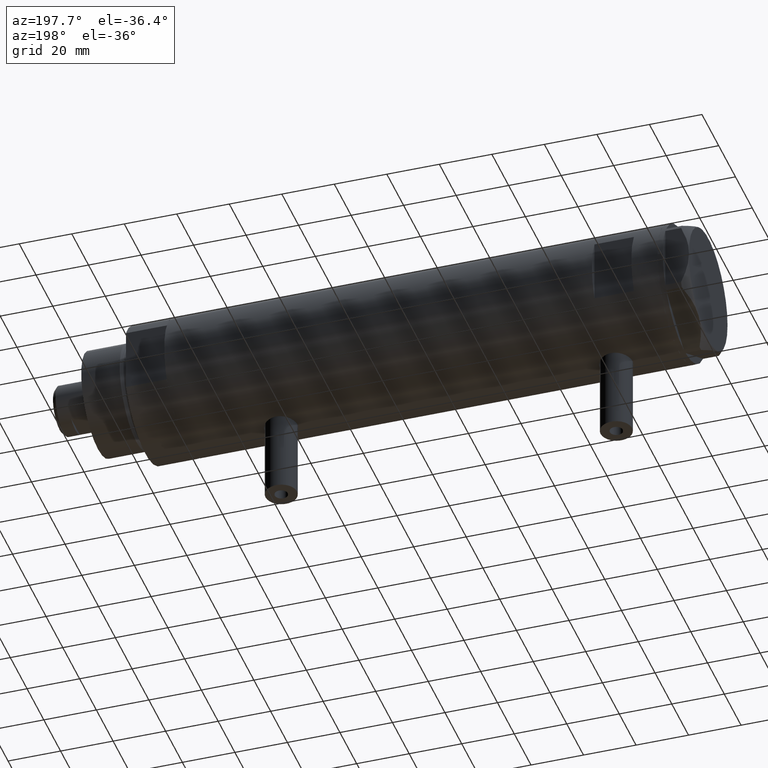
[diagram: clean part render]
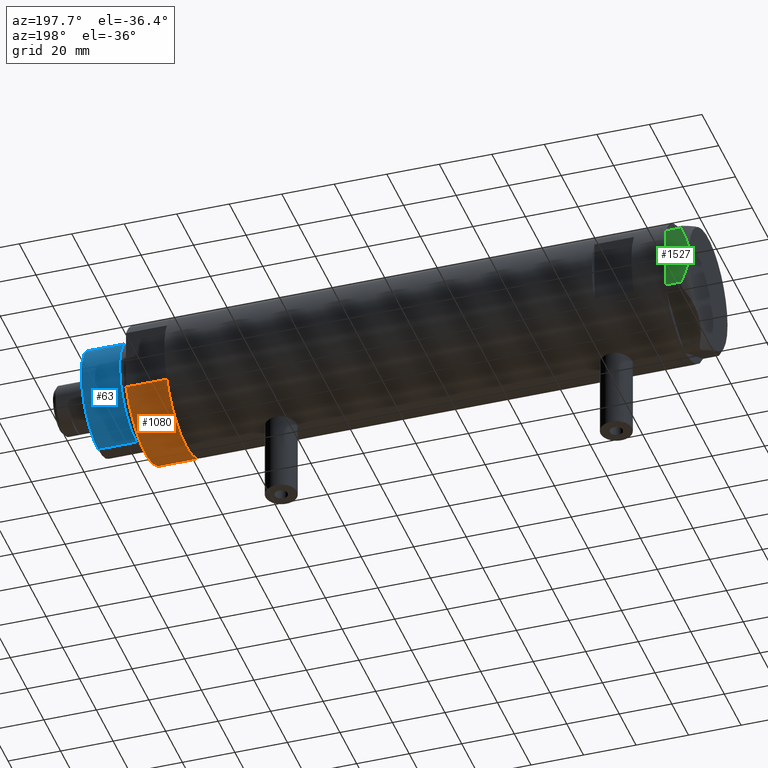
[diagram: same view with three faces highlighted in distinct colors, each labeled with its STEP entity id]
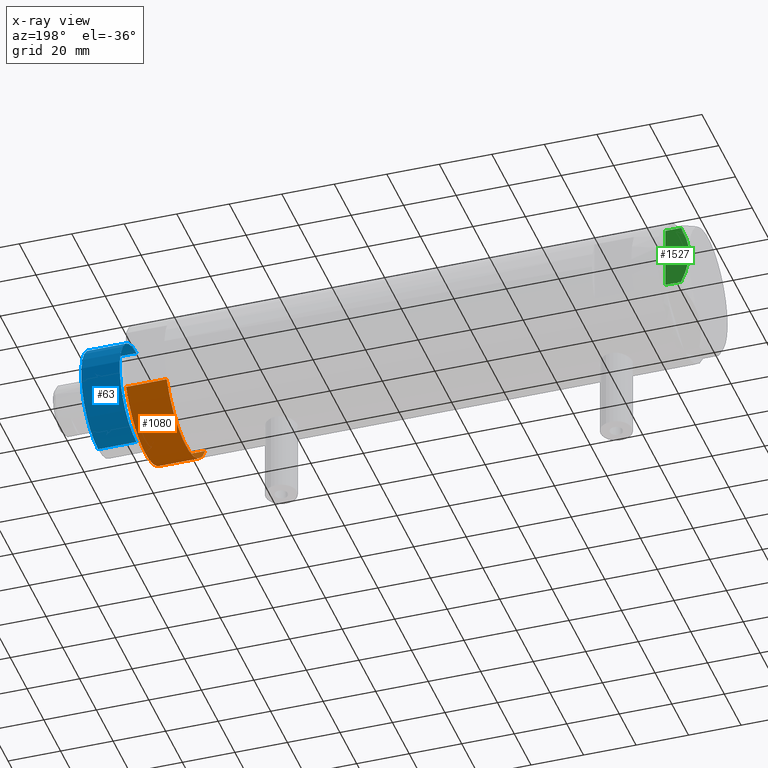
[diagram: x-ray of the same camera — body ghosted, the three highlighted faces saturated]
A machine part, auxiliary view with three faces highlighted in distinct colors.
The next image is the same camera in x-ray (body ghosted, the three faces saturated) — at least one of them is partly hidden behind the body in this view.
Their STEP definitions:

[orange] entity #1080 — the highlighted cylindrical surface (partial cylindrical patch) has radius 26 mm, axis along (-1, -0, 0).
#337 = EDGE_CURVE ( 'NONE', #416, #1329, #1840, .T. ) ;
#355 = FACE_OUTER_BOUND ( 'NONE', #2528, .T. ) ;
#416 = VERTEX_POINT ( 'NONE', #1389 ) ;
#421 = VECTOR ( 'NONE', #2691, 1000.000000000000000 ) ;
#427 = CIRCLE ( 'NONE', #681, 26.00000000000000355 ) ;
#646 = DIRECTION ( 'NONE',  ( -0.000000000000000000, -0.000000000000000000, -1.000000000000000000 ) ) ;
#681 = AXIS2_PLACEMENT_3D ( 'NONE', #2593, #1401, #4996 ) ;
#961 = VERTEX_POINT ( 'NONE', #2281 ) ;
#1024 = CARTESIAN_POINT ( 'NONE',  ( 12.12435565298215323, -22.99999999999999645, 0.000000000000000000 ) ) ;
#1080 = ADVANCED_FACE ( 'NONE', ( #355 ), #1923, .T. ) ;
#1147 = EDGE_CURVE ( 'NONE', #4863, #1329, #5066, .T. ) ;
#1197 = VECTOR ( 'NONE', #1398, 1000.000000000000000 ) ;
#1329 = VERTEX_POINT ( 'NONE', #2768 ) ;
#1389 = CARTESIAN_POINT ( 'NONE',  ( 12.12435565298215323, -22.99999999999999645, 15.50000000000000000 ) ) ;
#1398 = DIRECTION ( 'NONE',  ( -0.000000000000000000, -0.000000000000000000, 1.000000000000000000 ) ) ;
#1401 = DIRECTION ( 'NONE',  ( 0.000000000000000000, 0.000000000000000000, 1.000000000000000000 ) ) ;
#1589 = DIRECTION ( 'NONE',  ( 1.000000000000000000, 0.000000000000000000, 0.000000000000000000 ) ) ;
#1765 = AXIS2_PLACEMENT_3D ( 'NONE', #4296, #646, #4323 ) ;
#1839 = ORIENTED_EDGE ( 'NONE', *, *, #1147, .T. ) ;
#1840 = CIRCLE ( 'NONE', #3515, 26.00000000000000355 ) ;
#1923 = CYLINDRICAL_SURFACE ( 'NONE', #1765, 26.00000000000000355 ) ;
#2003 = EDGE_CURVE ( 'NONE', #961, #4863, #427, .T. ) ;
#2281 = CARTESIAN_POINT ( 'NONE',  ( 12.12435565298215323, -22.99999999999999645, 0.000000000000000000 ) ) ;
#2371 = DIRECTION ( 'NONE',  ( 0.000000000000000000, 0.000000000000000000, 1.000000000000000000 ) ) ;
#2476 = CARTESIAN_POINT ( 'NONE',  ( 0.000000000000000000, 0.000000000000000000, 15.50000000000000000 ) ) ;
#2528 = EDGE_LOOP ( 'NONE', ( #3009, #3280, #3367, #1839 ) ) ;
#2593 = CARTESIAN_POINT ( 'NONE',  ( 0.000000000000000000, 0.000000000000000000, 0.000000000000000000 ) ) ;
#2691 = DIRECTION ( 'NONE',  ( -0.000000000000000000, -0.000000000000000000, 1.000000000000000000 ) ) ;
#2749 = EDGE_CURVE ( 'NONE', #961, #416, #4143, .T. ) ;
#2768 = CARTESIAN_POINT ( 'NONE',  ( 12.12435565298214790, 23.00000000000000355, 15.50000000000000000 ) ) ;
#3009 = ORIENTED_EDGE ( 'NONE', *, *, #337, .F. ) ;
#3280 = ORIENTED_EDGE ( 'NONE', *, *, #2749, .F. ) ;
#3367 = ORIENTED_EDGE ( 'NONE', *, *, #2003, .T. ) ;
#3515 = AXIS2_PLACEMENT_3D ( 'NONE', #2476, #2371, #1589 ) ;
#4143 = LINE ( 'NONE', #1024, #1197 ) ;
#4268 = CARTESIAN_POINT ( 'NONE',  ( 12.12435565298215323, 23.00000000000000355, 0.000000000000000000 ) ) ;
#4296 = CARTESIAN_POINT ( 'NONE',  ( 0.000000000000000000, 0.000000000000000000, 15.50000000000000000 ) ) ;
#4323 = DIRECTION ( 'NONE',  ( -1.000000000000000000, 0.000000000000000000, 0.000000000000000000 ) ) ;
#4574 = CARTESIAN_POINT ( 'NONE',  ( 12.12435565298214080, 23.00000000000000355, 0.000000000000000000 ) ) ;
#4863 = VERTEX_POINT ( 'NONE', #4574 ) ;
#4996 = DIRECTION ( 'NONE',  ( 1.000000000000000000, 0.000000000000000000, 0.000000000000000000 ) ) ;
#5066 = LINE ( 'NONE', #4268, #421 ) ;

[blue] entity #63 — the highlighted cylindrical surface (partial cylindrical patch) has radius 20 mm, axis along (-1, -0, 0).
#63 = ADVANCED_FACE ( 'NONE', ( #3942 ), #722, .T. ) ;
#110 = DIRECTION ( 'NONE',  ( -0.000000000000000000, -0.000000000000000000, -1.000000000000000000 ) ) ;
#324 = DIRECTION ( 'NONE',  ( -1.000000000000000000, 0.000000000000000000, 0.000000000000000000 ) ) ;
#492 = DIRECTION ( 'NONE',  ( 1.000000000000000000, 0.000000000000000000, 0.000000000000000000 ) ) ;
#644 = VERTEX_POINT ( 'NONE', #1609 ) ;
#659 = LINE ( 'NONE', #3572, #1461 ) ;
#672 = AXIS2_PLACEMENT_3D ( 'NONE', #4444, #3969, #2439 ) ;
#722 = CYLINDRICAL_SURFACE ( 'NONE', #3947, 19.99999999999999645 ) ;
#754 = EDGE_CURVE ( 'NONE', #3873, #4759, #2939, .T. ) ;
#822 = EDGE_CURVE ( 'NONE', #1915, #4759, #4553, .T. ) ;
#854 = CIRCLE ( 'NONE', #5133, 19.99999999999999645 ) ;
#1461 = VECTOR ( 'NONE', #2330, 1000.000000000000000 ) ;
#1560 = ORIENTED_EDGE ( 'NONE', *, *, #754, .T. ) ;
#1609 = CARTESIAN_POINT ( 'NONE',  ( 19.99999999999999645, 2.449293598294706119E-15, 33.50000000000000000 ) ) ;
#1838 = EDGE_CURVE ( 'NONE', #644, #1915, #854, .T. ) ;
#1915 = VERTEX_POINT ( 'NONE', #2729 ) ;
#2020 = DIRECTION ( 'NONE',  ( 0.000000000000000000, 0.000000000000000000, 1.000000000000000000 ) ) ;
#2246 = CARTESIAN_POINT ( 'NONE',  ( 19.99999999999999645, 2.449293598294706119E-15, 18.87384048104053846 ) ) ;
#2330 = DIRECTION ( 'NONE',  ( -0.000000000000000000, -0.000000000000000000, -1.000000000000000000 ) ) ;
#2439 = DIRECTION ( 'NONE',  ( 1.000000000000000000, 0.000000000000000000, 0.000000000000000000 ) ) ;
#2592 = CARTESIAN_POINT ( 'NONE',  ( -19.99999999999999645, 0.000000000000000000, 18.87384048104053846 ) ) ;
#2598 = ORIENTED_EDGE ( 'NONE', *, *, #4160, .T. ) ;
#2729 = CARTESIAN_POINT ( 'NONE',  ( -19.99999999999999645, 0.000000000000000000, 33.50000000000000000 ) ) ;
#2939 = CIRCLE ( 'NONE', #672, 19.99999999999999645 ) ;
#3021 = VECTOR ( 'NONE', #110, 1000.000000000000000 ) ;
#3132 = DIRECTION ( 'NONE',  ( -0.000000000000000000, -0.000000000000000000, -1.000000000000000000 ) ) ;
#3572 = CARTESIAN_POINT ( 'NONE',  ( 19.99999999999999645, 2.449293598294706119E-15, 33.50000000000000000 ) ) ;
#3873 = VERTEX_POINT ( 'NONE', #2246 ) ;
#3942 = FACE_OUTER_BOUND ( 'NONE', #4051, .T. ) ;
#3947 = AXIS2_PLACEMENT_3D ( 'NONE', #3972, #3132, #324 ) ;
#3969 = DIRECTION ( 'NONE',  ( -0.000000000000000000, -0.000000000000000000, 1.000000000000000000 ) ) ;
#3972 = CARTESIAN_POINT ( 'NONE',  ( 0.000000000000000000, 0.000000000000000000, 33.50000000000000000 ) ) ;
#4051 = EDGE_LOOP ( 'NONE', ( #4140, #2598, #1560, #4758 ) ) ;
#4096 = CARTESIAN_POINT ( 'NONE',  ( -19.99999999999999645, 0.000000000000000000, 33.50000000000000000 ) ) ;
#4140 = ORIENTED_EDGE ( 'NONE', *, *, #1838, .F. ) ;
#4160 = EDGE_CURVE ( 'NONE', #644, #3873, #659, .T. ) ;
#4444 = CARTESIAN_POINT ( 'NONE',  ( 0.000000000000000000, 0.000000000000000000, 18.87384048104053846 ) ) ;
#4553 = LINE ( 'NONE', #4096, #3021 ) ;
#4758 = ORIENTED_EDGE ( 'NONE', *, *, #822, .F. ) ;
#4759 = VERTEX_POINT ( 'NONE', #2592 ) ;
#4840 = CARTESIAN_POINT ( 'NONE',  ( 0.000000000000000000, 0.000000000000000000, 33.50000000000000000 ) ) ;
#5133 = AXIS2_PLACEMENT_3D ( 'NONE', #4840, #2020, #492 ) ;

[green] entity #1527 — the highlighted planar face has unit normal (0, -1, 0).
#12 = CARTESIAN_POINT ( 'NONE',  ( 22.99999999999982236, 12.15905619136163729, 0.000000000000000000 ) ) ;
#19 = VECTOR ( 'NONE', #1291, 1000.000000000000000 ) ;
#58 = CARTESIAN_POINT ( 'NONE',  ( 22.99999999999997513, -2.122900714017905699, 9.000000000000095923 ) ) ;
#137 = CARTESIAN_POINT ( 'NONE',  ( 23.00000000000008527, -13.27905619136115867, 0.000000000000000000 ) ) ;
#239 = EDGE_CURVE ( 'NONE', #5113, #496, #3682, .T. ) ;
#271 = CARTESIAN_POINT ( 'NONE',  ( 23.00000000000007461, -12.12435565298200224, 0.000000000000000000 ) ) ;
#275 = VECTOR ( 'NONE', #903, 1000.000000000000000 ) ;
#300 = CARTESIAN_POINT ( 'NONE',  ( 22.99999999999987921, 7.253003311474552461, 7.903276810347635184 ) ) ;
#326 = CARTESIAN_POINT ( 'NONE',  ( 22.99999999999985079, 9.734726261263462632, 7.028924700095659617 ) ) ;
#383 = EDGE_CURVE ( 'NONE', #1313, #3920, #4562, .T. ) ;
#429 = CARTESIAN_POINT ( 'NONE',  ( 23.00000000000008527, -13.27905619136115867, 0.000000000000000000 ) ) ;
#440 = LINE ( 'NONE', #1210, #19 ) ;
#496 = VERTEX_POINT ( 'NONE', #271 ) ;
#507 = AXIS2_PLACEMENT_3D ( 'NONE', #4873, #4561, #1770 ) ;
#660 = ORIENTED_EDGE ( 'NONE', *, *, #3539, .T. ) ;
#727 = EDGE_CURVE ( 'NONE', #1857, #1393, #4347, .T. ) ;
#823 = CARTESIAN_POINT ( 'NONE',  ( 23.00000000000006395, -11.20825071633898240, 6.428173306378455187 ) ) ;
#852 = EDGE_CURVE ( 'NONE', #5082, #1313, #981, .T. ) ;
#861 = CARTESIAN_POINT ( 'NONE',  ( 22.99999999999982592, 12.12435565298247653, 0.000000000000000000 ) ) ;
#903 = DIRECTION ( 'NONE',  ( -1.032024811306395780E-14, 1.000000000000000000, 0.000000000000000000 ) ) ;
#917 = CARTESIAN_POINT ( 'NONE',  ( 23.00000000000007461, -12.15905619136115412, 5.983800287807623519 ) ) ;
#922 = VECTOR ( 'NONE', #3789, 1000.000000000000000 ) ;
#943 = CARTESIAN_POINT ( 'NONE',  ( 22.99999999999982236, 12.15905619136164262, 5.983800287807618190 ) ) ;
#981 = LINE ( 'NONE', #137, #5040 ) ;
#1143 = ORIENTED_EDGE ( 'NONE', *, *, #239, .T. ) ;
#1152 = CARTESIAN_POINT ( 'NONE',  ( 22.99999999999995026, 2.373657066004705010E-13, 9.000000000000000000 ) ) ;
#1210 = CARTESIAN_POINT ( 'NONE',  ( 23.00000000000007461, -12.15905619136115590, 9.000000000000000000 ) ) ;
#1224 = CARTESIAN_POINT ( 'NONE',  ( 23.00000000000005684, -10.23890159976104641, 6.840812428290920622 ) ) ;
#1230 = EDGE_CURVE ( 'NONE', #1393, #3920, #3693, .T. ) ;
#1291 = DIRECTION ( 'NONE',  ( 0.000000000000000000, 0.000000000000000000, -1.000000000000000000 ) ) ;
#1313 = VERTEX_POINT ( 'NONE', #12 ) ;
#1393 = VERTEX_POINT ( 'NONE', #1152 ) ;
#1465 = CARTESIAN_POINT ( 'NONE',  ( 22.99999999999995026, 2.373657066004705010E-13, 9.000000000000000000 ) ) ;
#1488 = CARTESIAN_POINT ( 'NONE',  ( 22.99999999999982236, 12.15905619136164262, 5.983800287807618190 ) ) ;
#1527 = ADVANCED_FACE ( 'NONE', ( #4530 ), #3340, .F. ) ;
#1583 = CARTESIAN_POINT ( 'NONE',  ( 23.00000000000002132, -6.734330413511252722, 8.039389741252669808 ) ) ;
#1617 = DIRECTION ( 'NONE',  ( -1.032024811306395780E-14, 1.000000000000000000, 0.000000000000000000 ) ) ;
#1661 = ORIENTED_EDGE ( 'NONE', *, *, #383, .T. ) ;
#1770 = DIRECTION ( 'NONE',  ( 1.032024811306395780E-14, -1.000000000000000000, 0.000000000000000000 ) ) ;
#1857 = VERTEX_POINT ( 'NONE', #917 ) ;
#2072 = ORIENTED_EDGE ( 'NONE', *, *, #852, .T. ) ;
#2221 = CARTESIAN_POINT ( 'NONE',  ( 22.99999999999983658, 10.22738952213810926, 6.832470313674774864 ) ) ;
#2293 = CARTESIAN_POINT ( 'NONE',  ( 22.99999999999986500, 8.252113629125430450, 7.581642062680224115 ) ) ;
#2316 = CARTESIAN_POINT ( 'NONE',  ( 22.99999999999993960, 1.063773509315896648, 8.981438083606837708 ) ) ;
#2417 = CARTESIAN_POINT ( 'NONE',  ( 23.00000000000002842, -7.239756182922028493, 7.892186063422852449 ) ) ;
#2478 = ORIENTED_EDGE ( 'NONE', *, *, #2514, .T. ) ;
#2503 = CARTESIAN_POINT ( 'NONE',  ( 23.00000000000007461, -12.15905619136115590, 0.000000000000000000 ) ) ;
#2514 = EDGE_CURVE ( 'NONE', #1857, #5113, #440, .T. ) ;
#2793 = CARTESIAN_POINT ( 'NONE',  ( 23.00000000000007461, -12.15905619136115412, 5.983800287807623519 ) ) ;
#2805 = ORIENTED_EDGE ( 'NONE', *, *, #727, .F. ) ;
#2866 = CARTESIAN_POINT ( 'NONE',  ( 22.99999999999995026, 2.373657066004705010E-13, 9.000000000000000000 ) ) ;
#3060 = CARTESIAN_POINT ( 'NONE',  ( 22.99999999999984368, 11.20155944044832630, 6.421102682632754188 ) ) ;
#3135 = CARTESIAN_POINT ( 'NONE',  ( 22.99999999999982947, 11.68282849742352525, 6.206372352695418648 ) ) ;
#3176 = CARTESIAN_POINT ( 'NONE',  ( 22.99999999999999289, -4.194757081058811288, 8.703000351525204792 ) ) ;
#3263 = VECTOR ( 'NONE', #1617, 1000.000000000000000 ) ;
#3340 = PLANE ( 'NONE',  #507 ) ;
#3449 = CARTESIAN_POINT ( 'NONE',  ( 22.99999999999992184, 2.643615312305318099, 8.854304560636265364 ) ) ;
#3539 = EDGE_CURVE ( 'NONE', #496, #5082, #4276, .T. ) ;
#3682 = LINE ( 'NONE', #429, #3263 ) ;
#3693 = B_SPLINE_CURVE_WITH_KNOTS ( 'NONE', 3,
 ( #1465, #5089, #2316, #3915, #3449, #5065, #5138, #300, #2293, #326, #2221, #3060, #3135, #1488 ),
 .UNSPECIFIED., .F., .F.,
 ( 4, 2, 2, 2, 2, 2, 4 ),
 ( 0.04777139595992689614, 0.04934380568070229067, 0.05091621540147768521, 0.05406103484302848122, 0.05720585428457927030, 0.05877826400535466483, 0.06035067372613005937 ),
 .UNSPECIFIED. ) ;
#3789 = DIRECTION ( 'NONE',  ( 0.000000000000000000, 0.000000000000000000, 1.000000000000000000 ) ) ;
#3915 = CARTESIAN_POINT ( 'NONE',  ( 22.99999999999992539, 2.119709279062085727, 8.908535212173203988 ) ) ;
#3920 = VERTEX_POINT ( 'NONE', #943 ) ;
#3935 = ORIENTED_EDGE ( 'NONE', *, *, #1230, .F. ) ;
#4094 = EDGE_LOOP ( 'NONE', ( #2805, #2478, #1143, #660, #2072, #1661, #3935 ) ) ;
#4208 = DIRECTION ( 'NONE',  ( -1.032024811306395780E-14, 1.000000000000000000, 0.000000000000000000 ) ) ;
#4215 = CARTESIAN_POINT ( 'NONE',  ( 22.99999999999982236, 12.15905619136163729, 9.000000000000000000 ) ) ;
#4276 = LINE ( 'NONE', #4502, #275 ) ;
#4347 = B_SPLINE_CURVE_WITH_KNOTS ( 'NONE', 3,
 ( #2793, #823, #1224, #5182, #4397, #2417, #1583, #3176, #58, #2866 ),
 .UNSPECIFIED., .F., .F.,
 ( 4, 2, 2, 2, 4 ),
 ( 0.03516523594057417712, 0.03831677594541235687, 0.03989254594783144675, 0.04146831595025053663, 0.04777139595992689614 ),
 .UNSPECIFIED. ) ;
#4397 = CARTESIAN_POINT ( 'NONE',  ( 23.00000000000003197, -8.246028007352183664, 7.571131808646910599 ) ) ;
#4502 = CARTESIAN_POINT ( 'NONE',  ( 23.00000000000008527, -13.27905619136115867, 0.000000000000000000 ) ) ;
#4530 = FACE_OUTER_BOUND ( 'NONE', #4094, .T. ) ;
#4561 = DIRECTION ( 'NONE',  ( -1.000000000000000000, -1.032024811306395780E-14, 0.000000000000000000 ) ) ;
#4562 = LINE ( 'NONE', #4215, #922 ) ;
#4873 = CARTESIAN_POINT ( 'NONE',  ( 23.00000000000008527, -13.27905619136115867, 9.000000000000000000 ) ) ;
#5040 = VECTOR ( 'NONE', #4208, 1000.000000000000000 ) ;
#5065 = CARTESIAN_POINT ( 'NONE',  ( 22.99999999999990763, 4.203926054642127319, 8.641681223122510858 ) ) ;
#5082 = VERTEX_POINT ( 'NONE', #861 ) ;
#5089 = CARTESIAN_POINT ( 'NONE',  ( 22.99999999999994671, 0.5295934231899334099, 9.000000000000095923 ) ) ;
#5113 = VERTEX_POINT ( 'NONE', #2503 ) ;
#5138 = CARTESIAN_POINT ( 'NONE',  ( 22.99999999999990052, 5.228918809624284236, 8.433337033849852560 ) ) ;
#5182 = CARTESIAN_POINT ( 'NONE',  ( 23.00000000000004263, -8.748091966971204059, 7.396818978284578350 ) ) ;